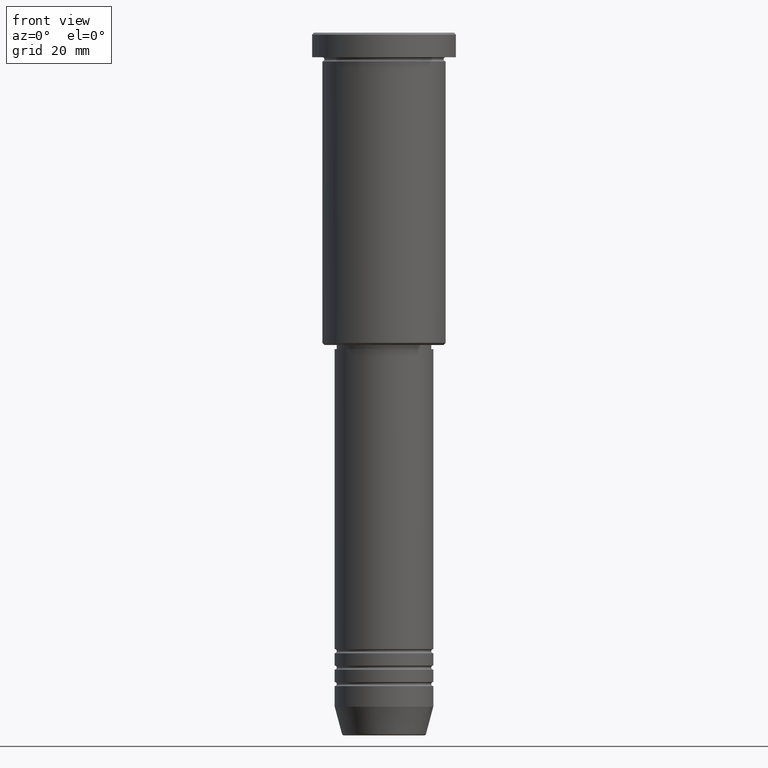
[diagram: clean part render]
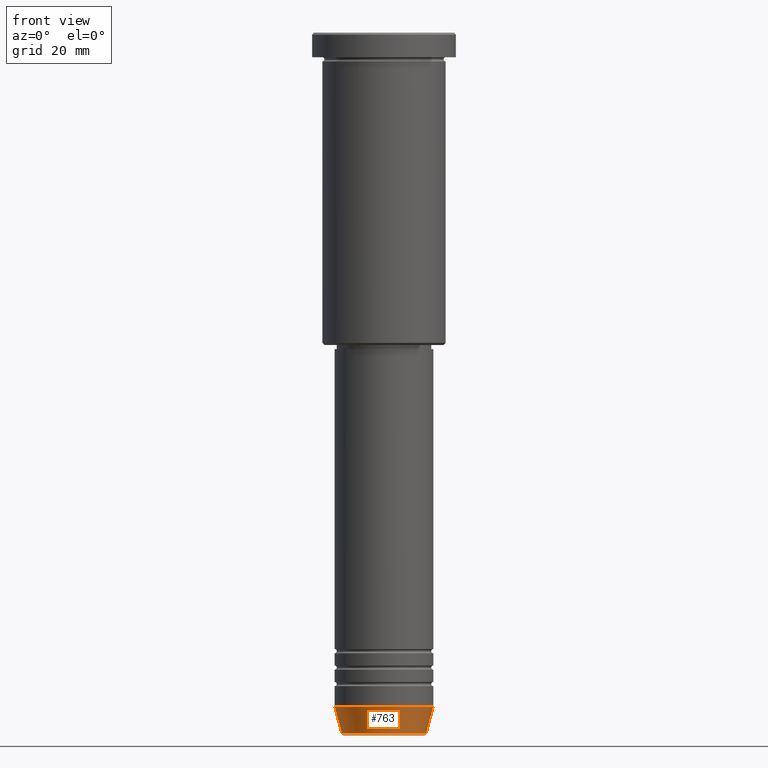
[diagram: same view with one face highlighted and labeled with its STEP entity id]
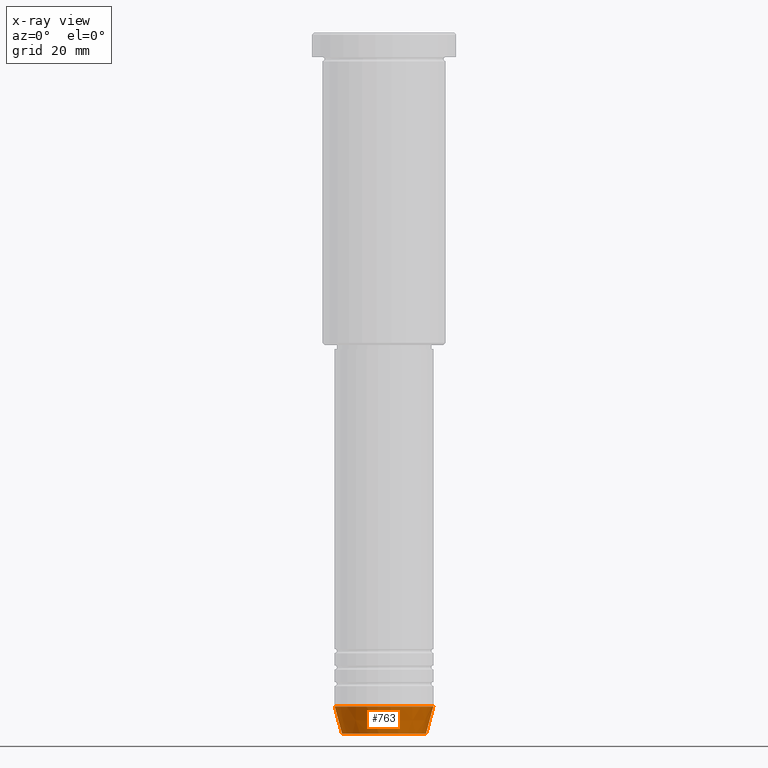
[diagram: x-ray of the same camera — body ghosted, the highlighted face saturated]
A machine part, front view. The second image highlights one B-rep face of the part: STEP entity #763.
The next image is the same camera in x-ray: the body ghosted, the highlighted face saturated — about 0% of this face is hidden behind the body in this view.
In plain terms, the highlighted conical surface has half-angle 15 deg.
Its self-contained STEP definition (entity closure, byte-faithful):
#22 = VERTEX_POINT ( 'NONE', #1027 ) ;
#77 = DIRECTION ( 'NONE',  ( -0.000000000000000000, -0.000000000000000000, 1.000000000000000000 ) ) ;
#101 = EDGE_CURVE ( 'NONE', #22, #807, #230, .T. ) ;
#130 = LINE ( 'NONE', #201, #1115 ) ;
#145 = AXIS2_PLACEMENT_3D ( 'NONE', #341, #77, #692 ) ;
#201 = CARTESIAN_POINT ( 'NONE',  ( -12.00000000000000000, 1.469576158976823947E-15, -163.9999999999999716 ) ) ;
#219 = DIRECTION ( 'NONE',  ( -0.000000000000000000, -0.000000000000000000, 1.000000000000000000 ) ) ;
#230 = CIRCLE ( 'NONE', #145, 12.00000000000000000 ) ;
#244 = CARTESIAN_POINT ( 'NONE',  ( 10.22365507213719127, 0.000000000000000000, -170.6294095225512422 ) ) ;
#260 = AXIS2_PLACEMENT_3D ( 'NONE', #1010, #656, #1018 ) ;
#306 = DIRECTION ( 'NONE',  ( 0.2588190451025213501, 0.000000000000000000, 0.9659258262890680902 ) ) ;
#341 = CARTESIAN_POINT ( 'NONE',  ( 0.000000000000000000, 0.000000000000000000, -163.9999999999999716 ) ) ;
#355 = CONICAL_SURFACE ( 'NONE', #953, 12.00000000000000000, 0.2617993877991500740 ) ;
#413 = DIRECTION ( 'NONE',  ( 1.000000000000000000, 0.000000000000000000, 0.000000000000000000 ) ) ;
#475 = VECTOR ( 'NONE', #306, 1000.000000000000000 ) ;
#478 = DIRECTION ( 'NONE',  ( -0.2588190451025213501, 3.169619151431772337E-17, 0.9659258262890680902 ) ) ;
#526 = ORIENTED_EDGE ( 'NONE', *, *, #817, .F. ) ;
#608 = EDGE_CURVE ( 'NONE', #1178, #765, #1173, .T. ) ;
#656 = DIRECTION ( 'NONE',  ( -0.000000000000000000, -0.000000000000000000, 1.000000000000000000 ) ) ;
#659 = CARTESIAN_POINT ( 'NONE',  ( 12.00000000000000000, 0.000000000000000000, -163.9999999999999716 ) ) ;
#664 = CARTESIAN_POINT ( 'NONE',  ( -10.22365507213719127, 1.360806402472382744E-15, -170.6294095225512422 ) ) ;
#665 = CARTESIAN_POINT ( 'NONE',  ( 12.00000000000000000, 0.000000000000000000, -163.9999999999999716 ) ) ;
#667 = CARTESIAN_POINT ( 'NONE',  ( 0.000000000000000000, 0.000000000000000000, -163.9999999999999716 ) ) ;
#692 = DIRECTION ( 'NONE',  ( 1.000000000000000000, 0.000000000000000000, 0.000000000000000000 ) ) ;
#693 = ORIENTED_EDGE ( 'NONE', *, *, #101, .F. ) ;
#698 = ORIENTED_EDGE ( 'NONE', *, *, #608, .T. ) ;
#763 = ADVANCED_FACE ( 'NONE', ( #771 ), #355, .T. ) ;
#765 = VERTEX_POINT ( 'NONE', #244 ) ;
#771 = FACE_OUTER_BOUND ( 'NONE', #1021, .T. ) ;
#805 = EDGE_CURVE ( 'NONE', #765, #807, #925, .T. ) ;
#807 = VERTEX_POINT ( 'NONE', #659 ) ;
#817 = EDGE_CURVE ( 'NONE', #1178, #22, #130, .T. ) ;
#820 = ORIENTED_EDGE ( 'NONE', *, *, #805, .T. ) ;
#925 = LINE ( 'NONE', #665, #475 ) ;
#953 = AXIS2_PLACEMENT_3D ( 'NONE', #667, #219, #413 ) ;
#1010 = CARTESIAN_POINT ( 'NONE',  ( 0.000000000000000000, 0.000000000000000000, -170.6294095225512422 ) ) ;
#1018 = DIRECTION ( 'NONE',  ( 1.000000000000000000, 0.000000000000000000, 0.000000000000000000 ) ) ;
#1021 = EDGE_LOOP ( 'NONE', ( #526, #698, #820, #693 ) ) ;
#1027 = CARTESIAN_POINT ( 'NONE',  ( -12.00000000000000000, 1.469576158976823947E-15, -163.9999999999999716 ) ) ;
#1115 = VECTOR ( 'NONE', #478, 1000.000000000000000 ) ;
#1173 = CIRCLE ( 'NONE', #260, 10.22365507213719127 ) ;
#1178 = VERTEX_POINT ( 'NONE', #664 ) ;